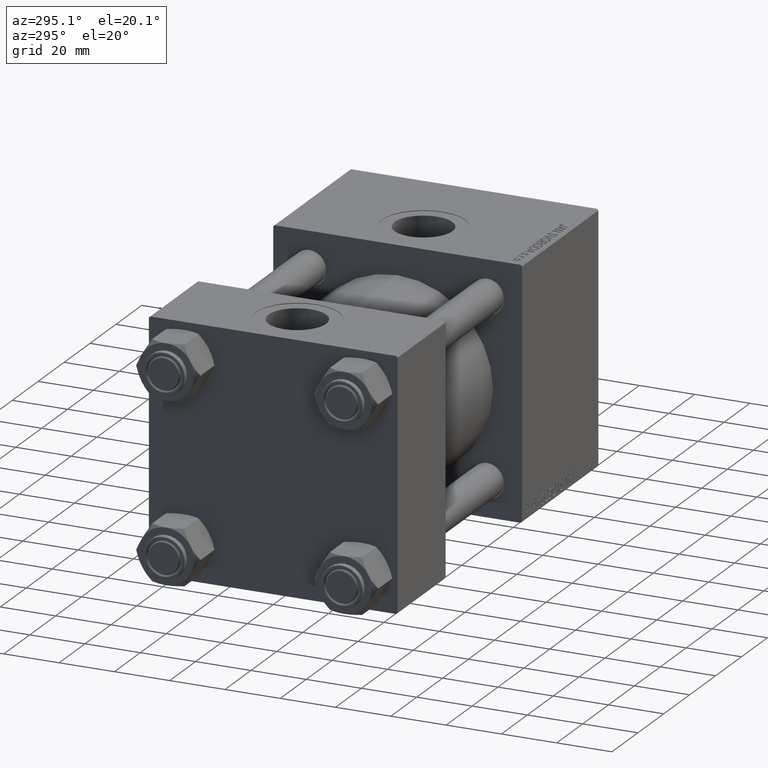
[diagram: clean part render]
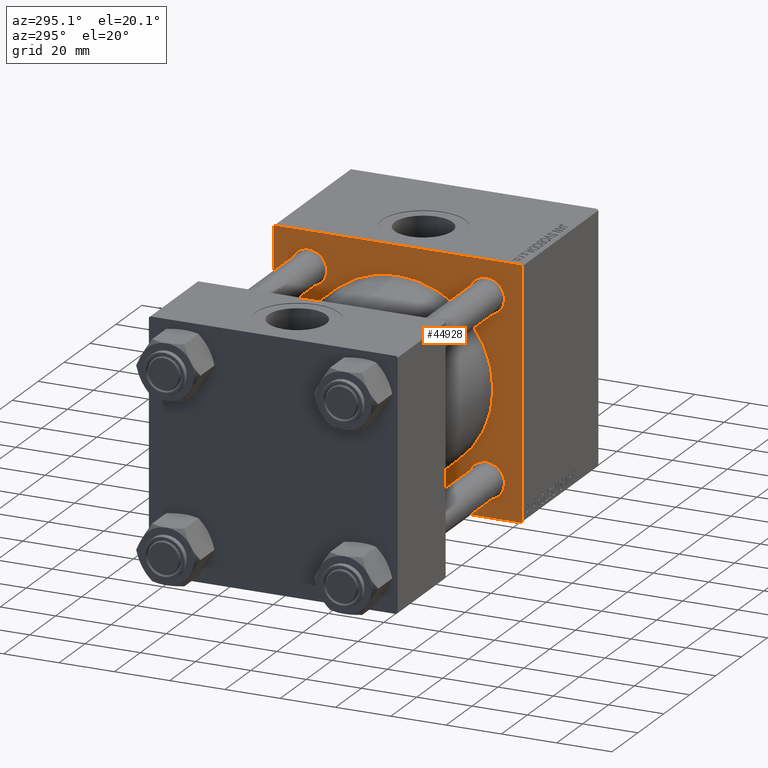
[diagram: same view with one face highlighted and labeled with its STEP entity id]
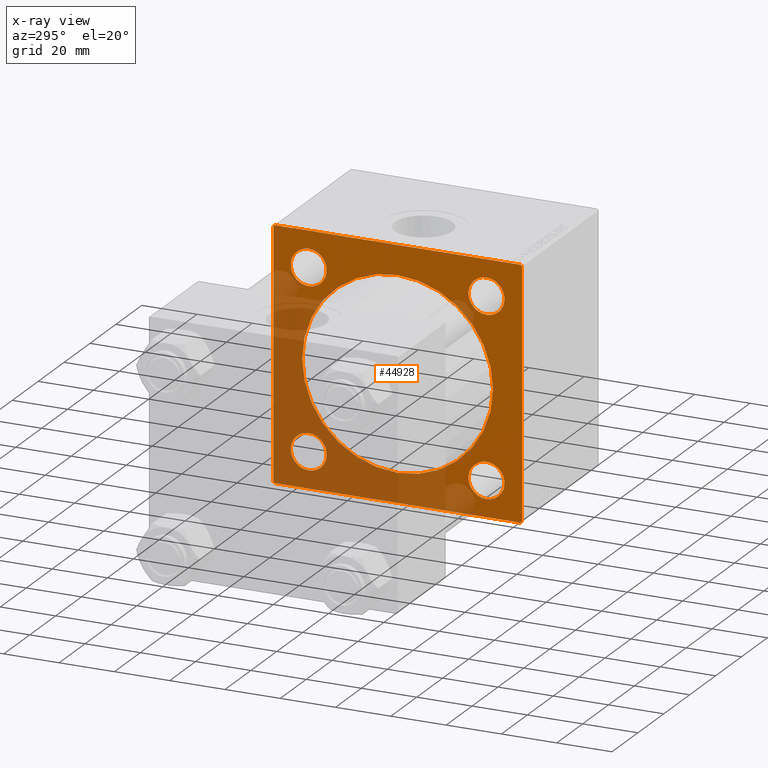
[diagram: x-ray of the same camera — body ghosted, the highlighted face saturated]
A machine part, auxiliary view. The second image highlights one B-rep face of the part: STEP entity #44928.
The next image is the same camera in x-ray: the body ghosted, the highlighted face saturated — about 42% of this face is hidden behind the body in this view.
In plain terms, the highlighted planar face has unit normal (-1, 0, 0).
Its self-contained STEP definition (entity closure, byte-faithful):
#170 = CARTESIAN_POINT ( 'NONE',  ( 96.00000000000000000, -44.75000000000001421, 44.75000000000001421 ) ) ;
#234 = EDGE_CURVE ( 'NONE', #3863, #17655, #10055, .T. ) ;
#972 = EDGE_LOOP ( 'NONE', ( #15040, #37637, #18754, #6857, #45992, #44277, #13947, #45764 ) ) ;
#1036 = EDGE_CURVE ( 'NONE', #10887, #31715, #29404, .T. ) ;
#2692 = CARTESIAN_POINT ( 'NONE',  ( 96.00000000000000000, -32.14999999999997726, -38.65000000000003411 ) ) ;
#2946 = CIRCLE ( 'NONE', #41864, 6.500000000000019540 ) ;
#3044 = LINE ( 'NONE', #18524, #17527 ) ;
#3199 = CARTESIAN_POINT ( 'NONE',  ( 96.00000000000000000, -32.14999999999997726, -32.15000000000000568 ) ) ;
#3468 = DIRECTION ( 'NONE',  ( -0.000000000000000000, 0.7071067811865474617, 0.7071067811865474617 ) ) ;
#3863 = VERTEX_POINT ( 'NONE', #37879 ) ;
#3908 = CARTESIAN_POINT ( 'NONE',  ( 96.00000000000000000, 45.00000000000000000, -44.99999999999998579 ) ) ;
#3929 = CIRCLE ( 'NONE', #38788, 34.50000000000000000 ) ;
#4161 = LINE ( 'NONE', #3908, #11297 ) ;
#5012 = EDGE_CURVE ( 'NONE', #32512, #49926, #23985, .T. ) ;
#6857 = ORIENTED_EDGE ( 'NONE', *, *, #35230, .T. ) ;
#7343 = ORIENTED_EDGE ( 'NONE', *, *, #36262, .T. ) ;
#7513 = DIRECTION ( 'NONE',  ( 1.000000000000000000, -0.000000000000000000, 0.000000000000000000 ) ) ;
#7606 = EDGE_CURVE ( 'NONE', #31715, #10887, #18353, .T. ) ;
#8302 = DIRECTION ( 'NONE',  ( 1.000000000000000000, -0.000000000000000000, 0.000000000000000000 ) ) ;
#8912 = VERTEX_POINT ( 'NONE', #20519 ) ;
#9028 = DIRECTION ( 'NONE',  ( 0.000000000000000000, 0.000000000000000000, -1.000000000000000000 ) ) ;
#9047 = CARTESIAN_POINT ( 'NONE',  ( 96.00000000000000000, -32.14999999999997726, -32.15000000000000568 ) ) ;
#9157 = VERTEX_POINT ( 'NONE', #32700 ) ;
#9492 = DIRECTION ( 'NONE',  ( 1.000000000000000000, -0.000000000000000000, 0.000000000000000000 ) ) ;
#10055 = CIRCLE ( 'NONE', #49781, 6.500000000000019540 ) ;
#10124 = CARTESIAN_POINT ( 'NONE',  ( 96.00000000000000000, 32.14999999999999147, 32.14999999999999858 ) ) ;
#10636 = DIRECTION ( 'NONE',  ( 1.000000000000000000, -0.000000000000000000, 0.000000000000000000 ) ) ;
#10887 = VERTEX_POINT ( 'NONE', #40888 ) ;
#11297 = VECTOR ( 'NONE', #46307, 1000.000000000000000 ) ;
#11398 = EDGE_CURVE ( 'NONE', #39388, #12542, #19484, .T. ) ;
#11597 = LINE ( 'NONE', #170, #28881 ) ;
#11754 = EDGE_CURVE ( 'NONE', #35618, #38064, #12077, .T. ) ;
#12072 = DIRECTION ( 'NONE',  ( 0.000000000000000000, 0.000000000000000000, 1.000000000000000000 ) ) ;
#12077 = LINE ( 'NONE', #22730, #44349 ) ;
#12539 = CARTESIAN_POINT ( 'NONE',  ( 96.00000000000000000, 32.14999999999999147, -38.65000000000001990 ) ) ;
#12542 = VERTEX_POINT ( 'NONE', #24950 ) ;
#13316 = LINE ( 'NONE', #35899, #29195 ) ;
#13443 = AXIS2_PLACEMENT_3D ( 'NONE', #39572, #31472, #39326 ) ;
#13529 = EDGE_CURVE ( 'NONE', #31262, #41032, #34660, .T. ) ;
#13800 = CIRCLE ( 'NONE', #42967, 6.500000000000019540 ) ;
#13947 = ORIENTED_EDGE ( 'NONE', *, *, #36656, .T. ) ;
#14122 = FACE_BOUND ( 'NONE', #19651, .T. ) ;
#14745 = VERTEX_POINT ( 'NONE', #21934 ) ;
#14969 = DIRECTION ( 'NONE',  ( 0.000000000000000000, 0.000000000000000000, -1.000000000000000000 ) ) ;
#15040 = ORIENTED_EDGE ( 'NONE', *, *, #17340, .T. ) ;
#15178 = CARTESIAN_POINT ( 'NONE',  ( 96.00000000000000000, -45.00000000000000000, 45.00000000000000000 ) ) ;
#15188 = EDGE_CURVE ( 'NONE', #14745, #46680, #37956, .T. ) ;
#15333 = CARTESIAN_POINT ( 'NONE',  ( 96.00000000000000000, 45.00000000000000000, 45.00000000000001421 ) ) ;
#15803 = ORIENTED_EDGE ( 'NONE', *, *, #7606, .T. ) ;
#17340 = EDGE_CURVE ( 'NONE', #38064, #8912, #4161, .T. ) ;
#17527 = VECTOR ( 'NONE', #14969, 1000.000000000000000 ) ;
#17655 = VERTEX_POINT ( 'NONE', #2692 ) ;
#18007 = DIRECTION ( 'NONE',  ( 1.000000000000000000, -0.000000000000000000, 0.000000000000000000 ) ) ;
#18178 = DIRECTION ( 'NONE',  ( -1.000000000000000000, 0.000000000000000000, -0.000000000000000000 ) ) ;
#18353 = CIRCLE ( 'NONE', #46747, 6.500000000000019540 ) ;
#18477 = EDGE_LOOP ( 'NONE', ( #20099, #15803 ) ) ;
#18524 = CARTESIAN_POINT ( 'NONE',  ( 96.00000000000000000, 45.00000000000000000, 45.00000000000001421 ) ) ;
#18754 = ORIENTED_EDGE ( 'NONE', *, *, #11398, .F. ) ;
#18893 = CARTESIAN_POINT ( 'NONE',  ( 96.00000000000000000, 32.14999999999999147, 25.64999999999998437 ) ) ;
#19283 = ORIENTED_EDGE ( 'NONE', *, *, #5012, .T. ) ;
#19324 = AXIS2_PLACEMENT_3D ( 'NONE', #41023, #18178, #21991 ) ;
#19430 = EDGE_CURVE ( 'NONE', #17655, #3863, #13800, .T. ) ;
#19484 = LINE ( 'NONE', #15178, #34587 ) ;
#19651 = EDGE_LOOP ( 'NONE', ( #21263, #31054 ) ) ;
#19675 = CARTESIAN_POINT ( 'NONE',  ( 96.00000000000000000, 32.14999999999999147, -32.14999999999999858 ) ) ;
#19962 = DIRECTION ( 'NONE',  ( 0.000000000000000000, 0.000000000000000000, 1.000000000000000000 ) ) ;
#20099 = ORIENTED_EDGE ( 'NONE', *, *, #1036, .T. ) ;
#20265 = ORIENTED_EDGE ( 'NONE', *, *, #25519, .T. ) ;
#20519 = CARTESIAN_POINT ( 'NONE',  ( 96.00000000000000000, -44.50000000000002842, -45.00000000000000000 ) ) ;
#21263 = ORIENTED_EDGE ( 'NONE', *, *, #234, .T. ) ;
#21360 = EDGE_LOOP ( 'NONE', ( #20265, #46996 ) ) ;
#21563 = CARTESIAN_POINT ( 'NONE',  ( 96.00000000000000000, 32.14999999999999147, 32.14999999999999858 ) ) ;
#21679 = DIRECTION ( 'NONE',  ( 1.000000000000000000, -0.000000000000000000, 0.000000000000000000 ) ) ;
#21934 = CARTESIAN_POINT ( 'NONE',  ( 96.00000000000000000, -32.14999999999997726, 38.65000000000002700 ) ) ;
#21991 = DIRECTION ( 'NONE',  ( -0.000000000000000000, 0.000000000000000000, 1.000000000000000000 ) ) ;
#22364 = DIRECTION ( 'NONE',  ( 0.000000000000000000, 0.000000000000000000, 1.000000000000000000 ) ) ;
#22730 = CARTESIAN_POINT ( 'NONE',  ( 96.00000000000000000, 44.74999999999999289, -44.74999999999999289 ) ) ;
#22871 = LINE ( 'NONE', #30492, #36285 ) ;
#23730 = ORIENTED_EDGE ( 'NONE', *, *, #45293, .T. ) ;
#23803 = DIRECTION ( 'NONE',  ( 0.000000000000000000, 0.000000000000000000, -1.000000000000000000 ) ) ;
#23828 = CARTESIAN_POINT ( 'NONE',  ( 96.00000000000000000, 44.50000000000000000, -44.99999999999998579 ) ) ;
#23985 = CIRCLE ( 'NONE', #13443, 34.50000000000000000 ) ;
#24718 = DIRECTION ( 'NONE',  ( 0.000000000000000000, 0.000000000000000000, 1.000000000000000000 ) ) ;
#24950 = CARTESIAN_POINT ( 'NONE',  ( 96.00000000000000000, -45.00000000000000000, -44.50000000000002842 ) ) ;
#25146 = DIRECTION ( 'NONE',  ( 0.000000000000000000, 0.000000000000000000, 1.000000000000000000 ) ) ;
#25519 = EDGE_CURVE ( 'NONE', #41032, #31262, #46296, .T. ) ;
#25561 = FACE_OUTER_BOUND ( 'NONE', #972, .T. ) ;
#26260 = LINE ( 'NONE', #15333, #46696 ) ;
#26362 = DIRECTION ( 'NONE',  ( 0.000000000000000000, 0.000000000000000000, 1.000000000000000000 ) ) ;
#28556 = DIRECTION ( 'NONE',  ( 0.000000000000000000, -0.7071067811865474617, 0.7071067811865474617 ) ) ;
#28881 = VECTOR ( 'NONE', #3468, 1000.000000000000114 ) ;
#28901 = EDGE_LOOP ( 'NONE', ( #34185, #7343 ) ) ;
#29195 = VECTOR ( 'NONE', #28556, 1000.000000000000114 ) ;
#29404 = CIRCLE ( 'NONE', #42365, 6.500000000000019540 ) ;
#30119 = FACE_BOUND ( 'NONE', #18477, .T. ) ;
#30492 = CARTESIAN_POINT ( 'NONE',  ( 96.00000000000000000, 44.75000000000001421, 44.75000000000001421 ) ) ;
#31054 = ORIENTED_EDGE ( 'NONE', *, *, #19430, .T. ) ;
#31155 = CARTESIAN_POINT ( 'NONE',  ( 96.00000000000000000, -44.50000000000000000, 45.00000000000000000 ) ) ;
#31262 = VERTEX_POINT ( 'NONE', #18893 ) ;
#31359 = DIRECTION ( 'NONE',  ( 1.000000000000000000, -0.000000000000000000, 0.000000000000000000 ) ) ;
#31472 = DIRECTION ( 'NONE',  ( 1.000000000000000000, 0.000000000000000000, 0.000000000000000000 ) ) ;
#31715 = VERTEX_POINT ( 'NONE', #12539 ) ;
#32235 = AXIS2_PLACEMENT_3D ( 'NONE', #21563, #18007, #25146 ) ;
#32273 = AXIS2_PLACEMENT_3D ( 'NONE', #49547, #33542, #22364 ) ;
#32350 = DIRECTION ( 'NONE',  ( 0.000000000000000000, 0.000000000000000000, 1.000000000000000000 ) ) ;
#32512 = VERTEX_POINT ( 'NONE', #38774 ) ;
#32571 = VERTEX_POINT ( 'NONE', #31155 ) ;
#32700 = CARTESIAN_POINT ( 'NONE',  ( 96.00000000000000000, 45.00000000000000000, 44.50000000000004263 ) ) ;
#33542 = DIRECTION ( 'NONE',  ( 1.000000000000000000, -0.000000000000000000, 0.000000000000000000 ) ) ;
#33659 = PLANE ( 'NONE',  #19324 ) ;
#33915 = DIRECTION ( 'NONE',  ( 0.000000000000000000, 0.000000000000000000, 1.000000000000000000 ) ) ;
#34141 = AXIS2_PLACEMENT_3D ( 'NONE', #10124, #10636, #26362 ) ;
#34185 = ORIENTED_EDGE ( 'NONE', *, *, #15188, .T. ) ;
#34399 = DIRECTION ( 'NONE',  ( -0.000000000000000000, -0.7071067811865474617, -0.7071067811865474617 ) ) ;
#34587 = VECTOR ( 'NONE', #23803, 1000.000000000000000 ) ;
#34660 = CIRCLE ( 'NONE', #32235, 6.500000000000012434 ) ;
#34822 = CARTESIAN_POINT ( 'NONE',  ( 96.00000000000000000, -32.14999999999997726, 25.64999999999998437 ) ) ;
#34879 = DIRECTION ( 'NONE',  ( 0.000000000000000000, -1.000000000000000000, -1.541976423090495387E-16 ) ) ;
#35230 = EDGE_CURVE ( 'NONE', #39388, #32571, #11597, .T. ) ;
#35435 = CARTESIAN_POINT ( 'NONE',  ( 96.00000000000000000, -2.602085213965210642E-15, 0.000000000000000000 ) ) ;
#35517 = EDGE_CURVE ( 'NONE', #37560, #32571, #26260, .T. ) ;
#35618 = VERTEX_POINT ( 'NONE', #41990 ) ;
#35899 = CARTESIAN_POINT ( 'NONE',  ( 96.00000000000000000, -44.75000000000002132, -44.75000000000002132 ) ) ;
#36262 = EDGE_CURVE ( 'NONE', #46680, #14745, #2946, .T. ) ;
#36285 = VECTOR ( 'NONE', #41912, 1000.000000000000114 ) ;
#36656 = EDGE_CURVE ( 'NONE', #9157, #35618, #3044, .T. ) ;
#36832 = CARTESIAN_POINT ( 'NONE',  ( 96.00000000000000000, 32.14999999999999147, 38.65000000000001279 ) ) ;
#37234 = FACE_BOUND ( 'NONE', #28901, .T. ) ;
#37284 = CARTESIAN_POINT ( 'NONE',  ( 96.00000000000000000, 1.622946243093158675E-15, -34.50000000000000000 ) ) ;
#37560 = VERTEX_POINT ( 'NONE', #44556 ) ;
#37637 = ORIENTED_EDGE ( 'NONE', *, *, #49198, .T. ) ;
#37879 = CARTESIAN_POINT ( 'NONE',  ( 96.00000000000000000, -32.14999999999997726, -25.64999999999998437 ) ) ;
#37956 = CIRCLE ( 'NONE', #32273, 6.500000000000019540 ) ;
#38064 = VERTEX_POINT ( 'NONE', #23828 ) ;
#38774 = CARTESIAN_POINT ( 'NONE',  ( 96.00000000000000000, -2.602085213965210642E-15, 34.50000000000000000 ) ) ;
#38788 = AXIS2_PLACEMENT_3D ( 'NONE', #35435, #39240, #9028 ) ;
#39240 = DIRECTION ( 'NONE',  ( 1.000000000000000000, 0.000000000000000000, 0.000000000000000000 ) ) ;
#39326 = DIRECTION ( 'NONE',  ( 0.000000000000000000, 0.000000000000000000, -1.000000000000000000 ) ) ;
#39388 = VERTEX_POINT ( 'NONE', #39700 ) ;
#39572 = CARTESIAN_POINT ( 'NONE',  ( 96.00000000000000000, -2.602085213965210642E-15, 0.000000000000000000 ) ) ;
#39700 = CARTESIAN_POINT ( 'NONE',  ( 96.00000000000000000, -45.00000000000000000, 44.50000000000002842 ) ) ;
#40888 = CARTESIAN_POINT ( 'NONE',  ( 96.00000000000000000, 32.14999999999999147, -25.64999999999997726 ) ) ;
#40957 = CARTESIAN_POINT ( 'NONE',  ( 96.00000000000000000, 32.14999999999999147, -32.14999999999999858 ) ) ;
#41023 = CARTESIAN_POINT ( 'NONE',  ( 96.00000000000000000, 0.000000000000000000, 0.000000000000000000 ) ) ;
#41032 = VERTEX_POINT ( 'NONE', #36832 ) ;
#41864 = AXIS2_PLACEMENT_3D ( 'NONE', #44257, #9492, #24718 ) ;
#41912 = DIRECTION ( 'NONE',  ( 0.000000000000000000, 0.7071067811865474617, -0.7071067811865474617 ) ) ;
#41990 = CARTESIAN_POINT ( 'NONE',  ( 96.00000000000000000, 45.00000000000000000, -44.49999999999995737 ) ) ;
#42365 = AXIS2_PLACEMENT_3D ( 'NONE', #19675, #31359, #12072 ) ;
#42901 = EDGE_CURVE ( 'NONE', #37560, #9157, #22871, .T. ) ;
#42967 = AXIS2_PLACEMENT_3D ( 'NONE', #3199, #7513, #33915 ) ;
#44257 = CARTESIAN_POINT ( 'NONE',  ( 96.00000000000000000, -32.14999999999997726, 32.15000000000000568 ) ) ;
#44277 = ORIENTED_EDGE ( 'NONE', *, *, #42901, .T. ) ;
#44349 = VECTOR ( 'NONE', #34399, 1000.000000000000114 ) ;
#44556 = CARTESIAN_POINT ( 'NONE',  ( 96.00000000000000000, 44.50000000000002842, 45.00000000000001421 ) ) ;
#44844 = FACE_BOUND ( 'NONE', #21360, .T. ) ;
#44928 = ADVANCED_FACE ( 'NONE', ( #37234, #44844, #30119, #14122, #45592, #25561 ), #33659, .T. ) ;
#45078 = EDGE_LOOP ( 'NONE', ( #19283, #23730 ) ) ;
#45293 = EDGE_CURVE ( 'NONE', #49926, #32512, #3929, .T. ) ;
#45592 = FACE_BOUND ( 'NONE', #45078, .T. ) ;
#45764 = ORIENTED_EDGE ( 'NONE', *, *, #11754, .T. ) ;
#45992 = ORIENTED_EDGE ( 'NONE', *, *, #35517, .F. ) ;
#46296 = CIRCLE ( 'NONE', #34141, 6.500000000000012434 ) ;
#46307 = DIRECTION ( 'NONE',  ( 0.000000000000000000, -1.000000000000000000, -1.541976423090495387E-16 ) ) ;
#46680 = VERTEX_POINT ( 'NONE', #34822 ) ;
#46696 = VECTOR ( 'NONE', #34879, 1000.000000000000000 ) ;
#46747 = AXIS2_PLACEMENT_3D ( 'NONE', #40957, #21679, #32350 ) ;
#46996 = ORIENTED_EDGE ( 'NONE', *, *, #13529, .T. ) ;
#49198 = EDGE_CURVE ( 'NONE', #8912, #12542, #13316, .T. ) ;
#49547 = CARTESIAN_POINT ( 'NONE',  ( 96.00000000000000000, -32.14999999999997726, 32.15000000000000568 ) ) ;
#49781 = AXIS2_PLACEMENT_3D ( 'NONE', #9047, #8302, #19962 ) ;
#49926 = VERTEX_POINT ( 'NONE', #37284 ) ;